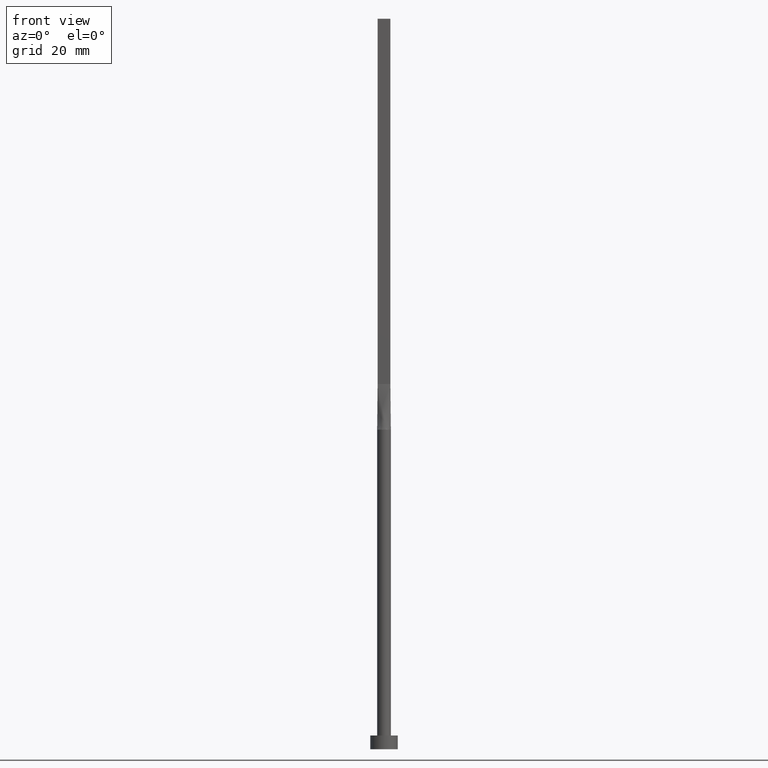
[diagram: clean part render]
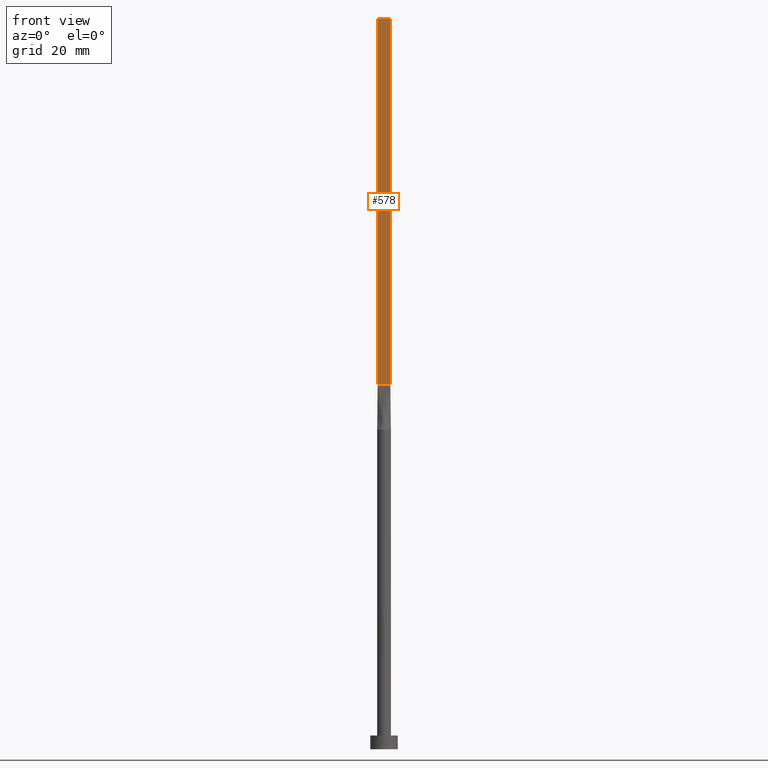
[diagram: same view with one face highlighted and labeled with its STEP entity id]
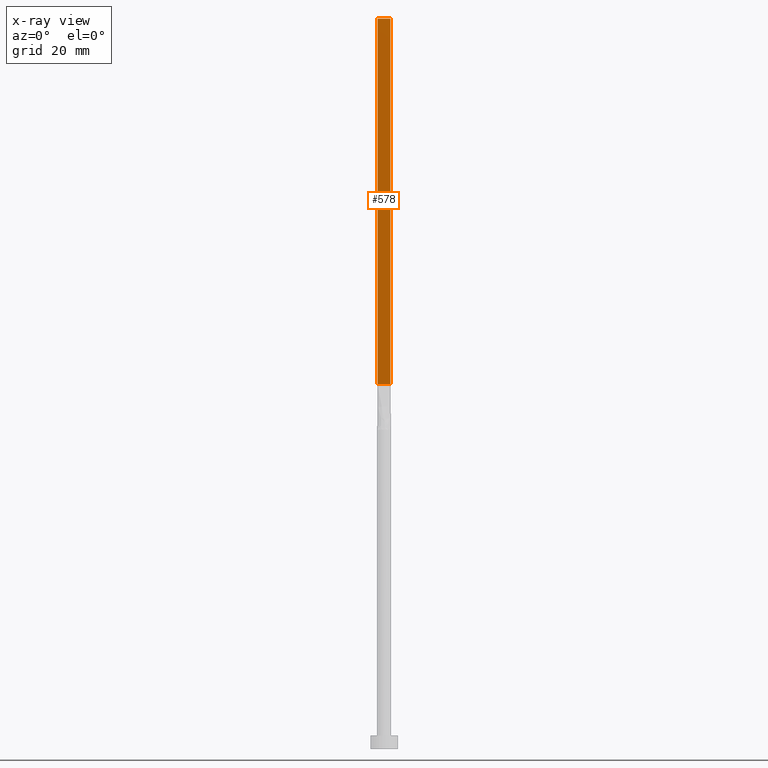
[diagram: x-ray of the same camera — body ghosted, the highlighted face saturated]
A machine part, front view. The second image highlights one B-rep face of the part: STEP entity #578.
The next image is the same camera in x-ray: the body ghosted, the highlighted face saturated — about 0% of this face is hidden behind the body in this view.
In plain terms, the highlighted planar face has unit normal (0, 1, -0).
Its self-contained STEP definition (entity closure, byte-faithful):
#14 = ORIENTED_EDGE ( 'NONE', *, *, #112, .F. ) ;
#25 = PLANE ( 'NONE',  #233 ) ;
#46 = CARTESIAN_POINT ( 'NONE',  ( -1.399999999999999911, -0.2499999999999996392, 160.0000000000000000 ) ) ;
#51 = EDGE_CURVE ( 'NONE', #377, #63, #60, .T. ) ;
#60 = LINE ( 'NONE', #244, #489 ) ;
#63 = VERTEX_POINT ( 'NONE', #412 ) ;
#112 = EDGE_CURVE ( 'NONE', #445, #471, #424, .T. ) ;
#149 = DIRECTION ( 'NONE',  ( -0.000000000000000000, -0.000000000000000000, -1.000000000000000000 ) ) ;
#157 = ORIENTED_EDGE ( 'NONE', *, *, #51, .T. ) ;
#164 = EDGE_LOOP ( 'NONE', ( #206, #14, #517, #157 ) ) ;
#176 = LINE ( 'NONE', #397, #269 ) ;
#189 = CARTESIAN_POINT ( 'NONE',  ( 1.399999999999999911, -0.2499999999999997780, 80.00000000000000000 ) ) ;
#201 = EDGE_CURVE ( 'NONE', #63, #471, #176, .T. ) ;
#206 = ORIENTED_EDGE ( 'NONE', *, *, #201, .T. ) ;
#208 = FACE_OUTER_BOUND ( 'NONE', #164, .T. ) ;
#210 = EDGE_CURVE ( 'NONE', #377, #445, #483, .T. ) ;
#213 = DIRECTION ( 'NONE',  ( 1.000000000000000000, -5.808225924029488744E-17, 0.000000000000000000 ) ) ;
#233 = AXIS2_PLACEMENT_3D ( 'NONE', #469, #559, #299 ) ;
#244 = CARTESIAN_POINT ( 'NONE',  ( -1.399999999999999911, -0.2499999999999996392, 160.0000000000000000 ) ) ;
#269 = VECTOR ( 'NONE', #426, 1000.000000000000000 ) ;
#299 = DIRECTION ( 'NONE',  ( -1.000000000000000000, 5.808225924029488744E-17, 0.000000000000000000 ) ) ;
#377 = VERTEX_POINT ( 'NONE', #46 ) ;
#397 = CARTESIAN_POINT ( 'NONE',  ( -1.399999999999999911, -0.2499999999999996392, 80.00000000000000000 ) ) ;
#412 = CARTESIAN_POINT ( 'NONE',  ( -1.399999999999999911, -0.2499999999999996392, 80.00000000000000000 ) ) ;
#424 = LINE ( 'NONE', #555, #509 ) ;
#426 = DIRECTION ( 'NONE',  ( 1.000000000000000000, -5.808225924029488744E-17, 0.000000000000000000 ) ) ;
#445 = VERTEX_POINT ( 'NONE', #576 ) ;
#469 = CARTESIAN_POINT ( 'NONE',  ( -1.399999999999999911, -0.2499999999999996392, 160.0000000000000000 ) ) ;
#471 = VERTEX_POINT ( 'NONE', #189 ) ;
#483 = LINE ( 'NONE', #574, #543 ) ;
#489 = VECTOR ( 'NONE', #507, 1000.000000000000000 ) ;
#507 = DIRECTION ( 'NONE',  ( -0.000000000000000000, -0.000000000000000000, -1.000000000000000000 ) ) ;
#509 = VECTOR ( 'NONE', #149, 1000.000000000000000 ) ;
#517 = ORIENTED_EDGE ( 'NONE', *, *, #210, .F. ) ;
#543 = VECTOR ( 'NONE', #213, 1000.000000000000000 ) ;
#555 = CARTESIAN_POINT ( 'NONE',  ( 1.399999999999999911, -0.2499999999999997780, 160.0000000000000000 ) ) ;
#559 = DIRECTION ( 'NONE',  ( 5.808225924029488744E-17, 1.000000000000000000, -0.000000000000000000 ) ) ;
#574 = CARTESIAN_POINT ( 'NONE',  ( -1.399999999999999911, -0.2499999999999996392, 160.0000000000000000 ) ) ;
#576 = CARTESIAN_POINT ( 'NONE',  ( 1.399999999999999911, -0.2499999999999997780, 160.0000000000000000 ) ) ;
#578 = ADVANCED_FACE ( 'NONE', ( #208 ), #25, .F. ) ;